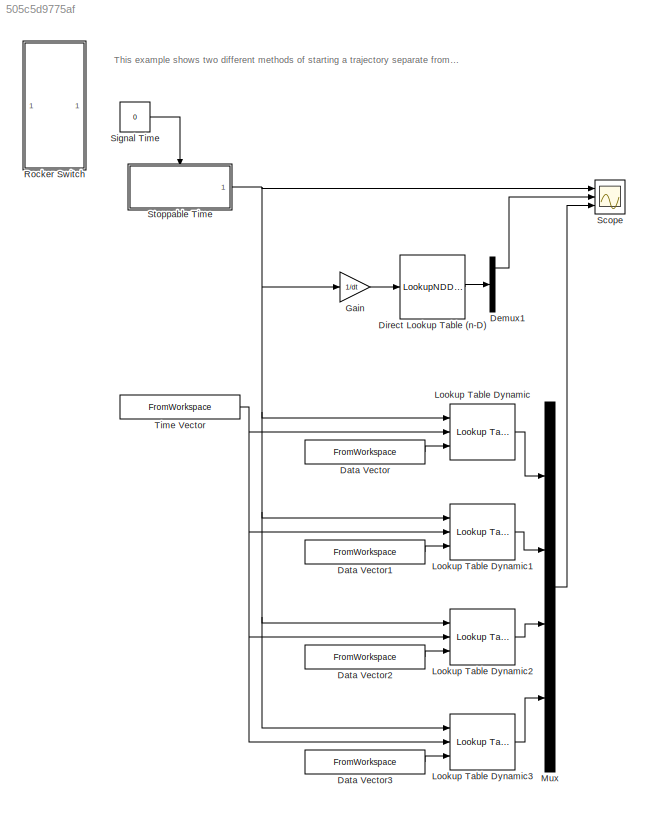
MODEL slx_505c5d9775af
KIND model
CONFIG AbsTol = auto
CONFIG FixedStep = 0.001
CONFIG MaxStep = auto
CONFIG MinStep = auto
CONFIG RelTol = 1e-3
CONFIG SampleTimeConstraint = Unconstrained
CONFIG Solver = ode5
CONFIG SolverMode = Auto
CONFIG SolverName = ode5
CONFIG StartTime = 0.0
CONFIG StopTime = inf
BLOCK [FromWorkspace] Data Vector
  SampleTime = 0
  VariableName = qrawseries.data(:,1)'
  ZeroCross = on
BLOCK [FromWorkspace] Data Vector1
  SampleTime = 0
  VariableName = qrawseries.data(:,2)'
  ZeroCross = on
BLOCK [FromWorkspace] Data Vector2
  SampleTime = 0
  VariableName = qrawseries.data(:,3)'
  ZeroCross = on
BLOCK [FromWorkspace] Data Vector3
  SampleTime = 0
  VariableName = qrawseries.data(:,4)'
  ZeroCross = on
BLOCK [Demux] Demux1
  DisplayOption = bar
  Ports = [1, 4]
BLOCK [LookupNDDirect] Direct Lookup Table (n-D)
  InputsSelectThisObjectFromTable = Column
  Ports = [1, 1]
  Table = qrawseries.data'
BLOCK [Gain] Gain
  Gain = 1/dt
  OutDataTypeStr = Inherit: Inherit via internal rule
  ParamDataTypeStr = Inherit: Inherit via internal rule
  SaturateOnIntegerOverflow = off
BLOCK [Reference] Lookup Table Dynamic  REF=simulink/Lookup
Tables/Lookup
Table
Dynamic
  Ports = [3, 1]
  SourceBlock = simulink/Lookup\nTables/Lookup\nTable\nDynamic
  SourceType = Lookup Table Dynamic
BLOCK [Reference] Lookup Table Dynamic1  REF=simulink/Lookup
Tables/Lookup
Table
Dynamic
  Ports = [3, 1]
  SourceBlock = simulink/Lookup\nTables/Lookup\nTable\nDynamic
  SourceType = Lookup Table Dynamic
BLOCK [Reference] Lookup Table Dynamic2  REF=simulink/Lookup
Tables/Lookup
Table
Dynamic
  Ports = [3, 1]
  SourceBlock = simulink/Lookup\nTables/Lookup\nTable\nDynamic
  SourceType = Lookup Table Dynamic
BLOCK [Reference] Lookup Table Dynamic3  REF=simulink/Lookup
Tables/Lookup
Table
Dynamic
  Ports = [3, 1]
  SourceBlock = simulink/Lookup\nTables/Lookup\nTable\nDynamic
  SourceType = Lookup Table Dynamic
BLOCK [Mux] Mux
  DisplayOption = bar
  Ports = [4, 1]
BLOCK [SubSystem] Rocker Switch
  DialogController = hmiCreateDDGDialog
  IsWebBlock = on
  MaskHideContents = on
  Ports = []
  RequestExecContextInheritance = off
  Variant = off
BLOCK [Scope] Scope
  NumInputPorts = 3
  Ports = [3]
  ScopeSpecificationString = Simulink.scopes.TimeScopeBlockCfg('CurrentConfiguration', extmgr.ConfigurationSet(extmgr.Configuration('Core','General UI',true),extmgr.Configuration('Core','Source UI',true),extmgr.Configuration('Sources','WiredSimulink',true),extmgr.Configuration('Visuals','Time Domain',true,'SerializedDisplays',{struct('MinYLimReal','-0.09093','MaxYLimReal','19.19573','YLabelReal','','MinYLimMag','0.00000','Max...<+2900ch>
BLOCK [Constant] Signal Time
  Value = 0
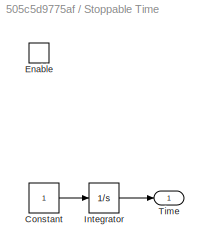
BLOCK [SubSystem] Stoppable Time
  Ports = [0, 1, 1]
  RequestExecContextInheritance = off
  TreatAsAtomicUnit = on
  Variant = off
BLOCK [Constant] Stoppable Time/Constant
BLOCK [EnablePort] Stoppable Time/Enable
  Ports = []
BLOCK [Integrator] Stoppable Time/Integrator
  Ports = [1, 1]
BLOCK [Outport] Stoppable Time/Time
  IconDisplay = Port number
BLOCK [FromWorkspace] Time Vector
  SampleTime = 0
  VariableName = [qrawseries.time]'
  ZeroCross = on
ANNOTATION (root): This example shows two different methods of starting a trajectory separate from the simulation start time. The upper example uses a direct lookup table. The lower example uses separate time and data vectors.
LINE Data Vector1:1 -> Lookup Table Dynamic1:3
LINE Data Vector2:1 -> Lookup Table Dynamic2:3
LINE Data Vector3:1 -> Lookup Table Dynamic3:3
LINE Data Vector:1 -> Lookup Table Dynamic:3
LINE Demux1:1 -> Scope:2
LINE Direct Lookup Table (n-D):1 -> Demux1:1
LINE Gain:1 -> Direct Lookup Table (n-D):1
LINE Lookup Table Dynamic1:1 -> Mux:2
LINE Lookup Table Dynamic2:1 -> Mux:3
LINE Lookup Table Dynamic3:1 -> Mux:4
LINE Lookup Table Dynamic:1 -> Mux:1
LINE Mux:1 -> Scope:3
LINE Signal Time:1 -> Stoppable Time:enable
LINE Stoppable Time/Constant:1 -> Stoppable Time/Integrator:1
LINE Stoppable Time/Integrator:1 -> Stoppable Time/Time:1
NET Stoppable Time:1 -> Gain:1, Lookup Table Dynamic1:1, Lookup Table Dynamic2:1, Lookup Table Dynamic3:1, Lookup Table Dynamic:1, Scope:1
NET Time Vector:1 -> Lookup Table Dynamic1:2, Lookup Table Dynamic2:2, Lookup Table Dynamic3:2, Lookup Table Dynamic:2
note: NET lines group one-source signal fan-out (src -> all destinations, sorted); 1:1 wires keep LINE
